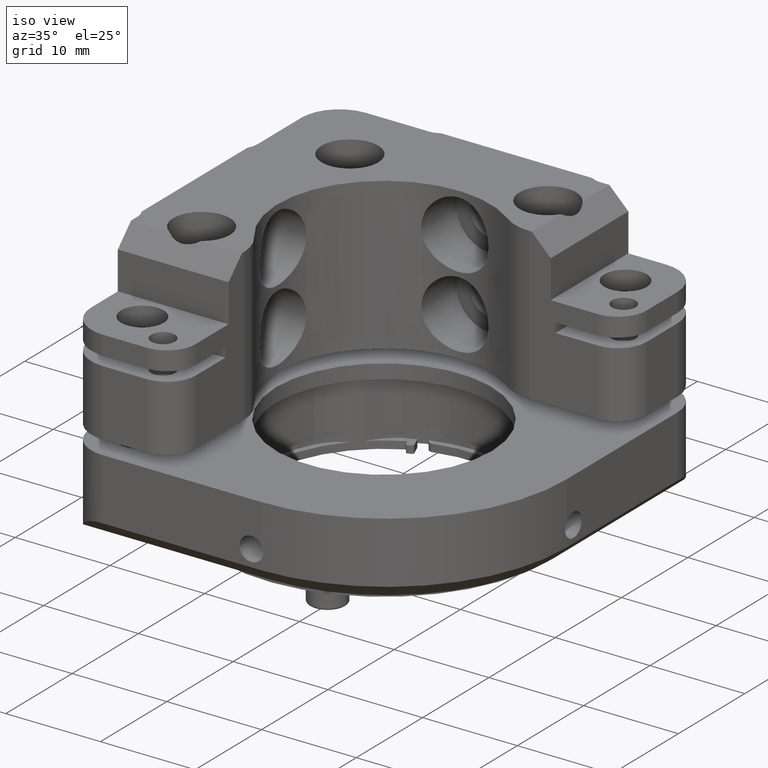
[diagram: clean part render]
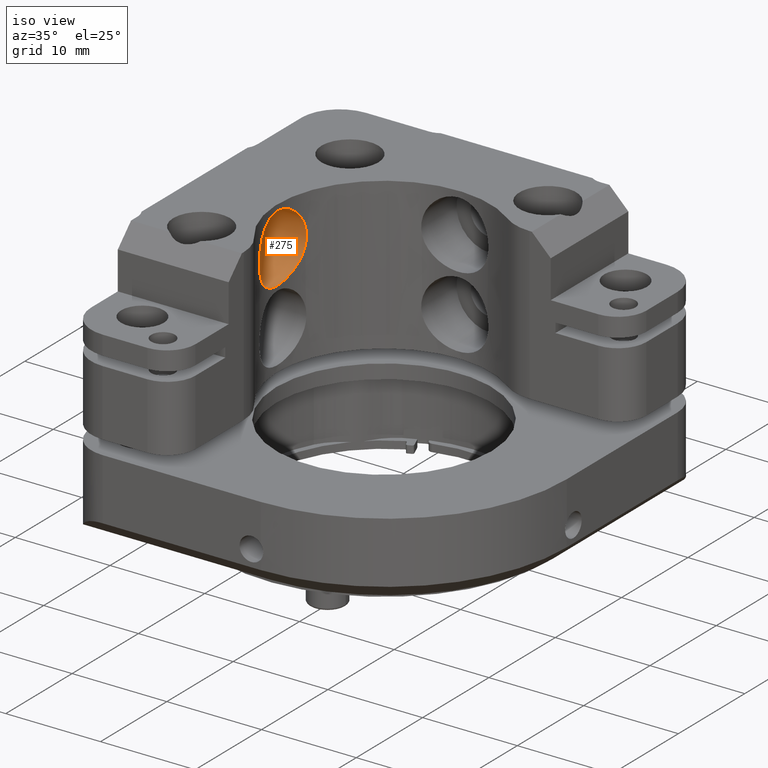
[diagram: same view with one face highlighted and labeled with its STEP entity id]
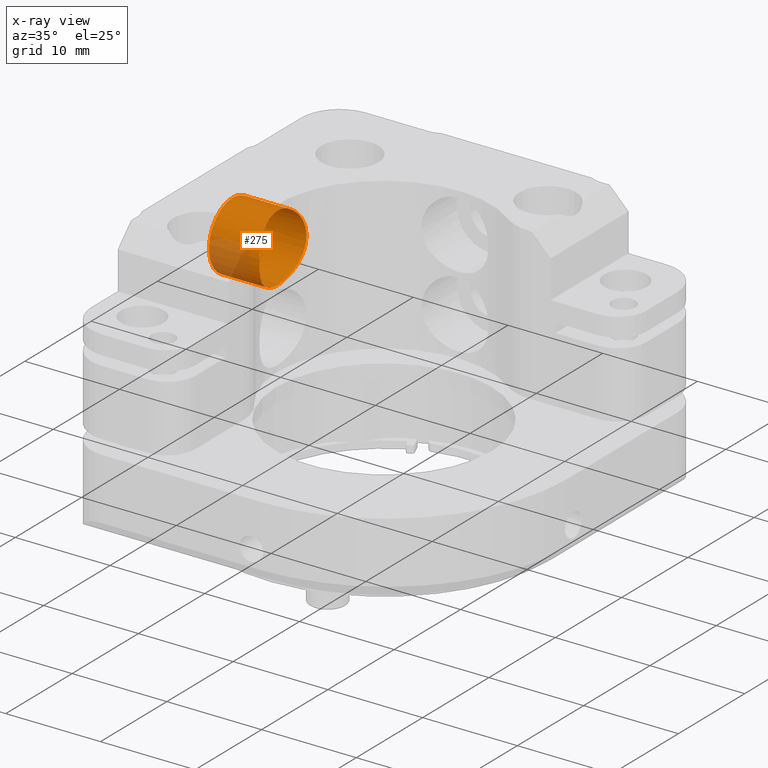
[diagram: x-ray of the same camera — body ghosted, the highlighted face saturated]
A machine part, iso view. The second image highlights one B-rep face of the part: STEP entity #275.
The next image is the same camera in x-ray: the body ghosted, the highlighted face saturated — about 21% of this face is hidden behind the body in this view.
In plain terms, the highlighted cylindrical surface (bore or boss wall) has radius 3.55 mm, axis along (-1, 0, 0).
Its self-contained STEP definition (entity closure, byte-faithful):
#230 = CARTESIAN_POINT ( 'NONE',  ( -14.34938155197306031, -0.3493427435872565323, 51.36994135241587145 ) ) ;
#243 = DIRECTION ( 'NONE',  ( -1.000000000000000000, 0.000000000000000000, 0.000000000000000000 ) ) ;
#266 = CARTESIAN_POINT ( 'NONE',  ( -14.50196695122227020, -3.668004962413770720, 51.91675362483372425 ) ) ;
#275 = ADVANCED_FACE ( 'NONE', ( #2614, #3347 ), #5842, .F. ) ;
#302 = CARTESIAN_POINT ( 'NONE',  ( -14.55884723110194479, -2.752726602096708941, 52.10018332450349732 ) ) ;
#388 = CARTESIAN_POINT ( 'NONE',  ( -14.02132692640836353, -5.953641031909469916, 47.62547198155860428 ) ) ;
#884 = CARTESIAN_POINT ( 'NONE',  ( -14.41806050655969607, -0.7339734682347992534, 51.62776871347067242 ) ) ;
#923 = CARTESIAN_POINT ( 'NONE',  ( -14.23784310037552991, -5.191031516735002072, 50.89782489308907998 ) ) ;
#964 = CARTESIAN_POINT ( 'NONE',  ( -14.23790010131066097, 0.1542511310234342958, 46.20198453954466089 ) ) ;
#1010 = CARTESIAN_POINT ( 'NONE',  ( -13.98373852480606772, 1.031736574939190687, 48.31748265889726923 ) ) ;
#1047 = CARTESIAN_POINT ( 'NONE',  ( -14.52286853720845095, -3.445834450622162315, 45.11533075807382431 ) ) ;
#1211 = CARTESIAN_POINT ( 'NONE',  ( -14.52297633522691811, -1.592701298058768478, 51.98514347307779815 ) ) ;
#1362 = AXIS2_PLACEMENT_3D ( 'NONE', #6175, #3638, #1884 ) ;
#1485 = CARTESIAN_POINT ( 'NONE',  ( -14.52291027287348690, -1.591501658945259967, 45.11519661780572932 ) ) ;
#1538 = CARTESIAN_POINT ( 'NONE',  ( -14.09792468312627989, 0.6694563421489656552, 46.97040808818641722 ) ) ;
#1579 = CARTESIAN_POINT ( 'NONE',  ( -14.04353503508571421, -5.884579590757777368, 49.70084631418019683 ) ) ;
#1621 = CARTESIAN_POINT ( 'NONE',  ( -14.19966687702944341, -5.340682160188625183, 46.38450991387337297 ) ) ;
#1661 = CARTESIAN_POINT ( 'NONE',  ( -14.13000341172667973, -5.596967618585718895, 50.33293905043067440 ) ) ;
#1783 = CARTESIAN_POINT ( 'NONE',  ( -14.44920765232755500, -0.9372602349848169201, 51.73704620837801826 ) ) ;
#1884 = DIRECTION ( 'NONE',  ( 0.000000000000000000, 0.000000000000000000, 1.000000000000000000 ) ) ;
#2097 = CARTESIAN_POINT ( 'NONE',  ( -13.99150271656788114, -6.045252171686082754, 49.01662609851116770 ) ) ;
#2139 = CARTESIAN_POINT ( 'NONE',  ( -14.55881623098980704, -2.285960062059621656, 45.00004295029686574 ) ) ;
#2183 = CARTESIAN_POINT ( 'NONE',  ( -14.31245966457891861, -4.865223725128505983, 45.87645910048630782 ) ) ;
#2221 = CARTESIAN_POINT ( 'NONE',  ( -14.55145378063382289, -2.984852828135218239, 52.07696004103888754 ) ) ;
#2263 = CARTESIAN_POINT ( 'NONE',  ( -14.34995764190793999, -4.684324765757032161, 51.37218108142621276 ) ) ;
#2430 = CARTESIAN_POINT ( 'NONE',  ( -14.55880942955014490, -2.516505101774574538, 52.10006357876157068 ) ) ;
#2614 = FACE_OUTER_BOUND ( 'NONE', #2866, .T. ) ;
#2712 = CARTESIAN_POINT ( 'NONE',  ( -14.31283028025158544, -0.1731325834270254493, 45.87495661421760929 ) ) ;
#2726 = DIRECTION ( 'NONE',  ( 0.000000000000000000, 0.000000000000000000, 1.000000000000000000 ) ) ;
#2750 = CARTESIAN_POINT ( 'NONE',  ( -14.31236665372329497, -4.865579660462101330, 51.22321759613161163 ) ) ;
#2791 = CARTESIAN_POINT ( 'NONE',  ( -13.98377623798470992, -6.068232449621256741, 48.78514352119040609 ) ) ;
#2831 = EDGE_LOOP ( 'NONE', ( #6524 ) ) ;
#2835 = CARTESIAN_POINT ( 'NONE',  ( -14.55142638204622152, -2.050476473053577386, 45.02325034902395373 ) ) ;
#2866 = EDGE_LOOP ( 'NONE', ( #6298 ) ) ;
#2870 = CARTESIAN_POINT ( 'NONE',  ( -14.20004375408154473, 0.3027011831886659565, 50.71773260952213747 ) ) ;
#2999 = B_SPLINE_CURVE_WITH_KNOTS ( 'NONE', 3,
 ( #7710, #302, #2221, #7864, #266, #7087, #6643, #2263, #2750, #923, #5248, #1661, #4644, #1579, #4064, #2097, #2791, #5294, #7826, #388, #7137, #3411, #5218, #1621, #5904, #2183, #4686, #7177, #6521, #4723, #1047, #6562, #7216, #2139, #2835, #1485, #7260, #4102, #6604, #5829, #2712, #964, #6483, #3373, #1538, #3450, #5950, #7743, #1010, #3985, #3495, #7790, #5334, #4023, #5986, #2870, #5371, #4146, #230, #884, #1783, #5417, #1211, #6063, #4314, #2430 ),
 .UNSPECIFIED., .T., .F.,
 ( 4, 2, 2, 2, 2, 2, 2, 2, 2, 2, 2, 2, 2, 2, 2, 2, 2, 2, 2, 2, 2, 2, 2, 2, 2, 2, 2, 2, 2, 2, 2, 2, 4 ),
 ( 0.000000000000000000, 0.0006989021168187838648, 0.001397804233637567730, 0.002096706350456351703, 0.002795608467275135459, 0.003494510584093919216, 0.004193412700912703406, 0.004892314817731486729, 0.005591216934550270919, 0.006290119051369055109, 0.006989021168187838431, 0.007687923285006622622, 0.008386825401825406812, 0.009085727518644190134, 0.009784629635462973457, 0.01048353175228175851, 0.01118243386910054184, 0.01188133598591932516, 0.01258023810273811022, 0.01327914021955689354, 0.01397804233637567686, 0.01467694445319446192, 0.01537584657001324524, 0.01607474868683202857, 0.01677365080365081362, 0.01747255292046959521, 0.01817145503728838027, 0.01887035715410716533, 0.01956925927092594691, 0.02026816138774473197, 0.02096706350456351703, 0.02166596562138229862, 0.02236486773820108367 ),
 .UNSPECIFIED. ) ;
#3115 = AXIS2_PLACEMENT_3D ( 'NONE', #5764, #243, #2726 ) ;
#3347 = FACE_OUTER_BOUND ( 'NONE', #2831, .T. ) ;
#3373 = CARTESIAN_POINT ( 'NONE',  ( -14.13034108904982844, 0.5591043744184972519, 46.76536937481006362 ) ) ;
#3406 = VERTEX_POINT ( 'NONE', #4720 ) ;
#3411 = CARTESIAN_POINT ( 'NONE',  ( -14.09777252055769914, -5.706580936417137373, 46.97140806861663265 ) ) ;
#3450 = CARTESIAN_POINT ( 'NONE',  ( -14.04320260101548712, 0.8490531433978674158, 47.40200718258390822 ) ) ;
#3495 = CARTESIAN_POINT ( 'NONE',  ( -13.99143269117510968, 1.008855428358812478, 49.01525435947483800 ) ) ;
#3638 = DIRECTION ( 'NONE',  ( 1.000000000000000000, -0.000000000000000000, -0.000000000000000000 ) ) ;
#3835 = EDGE_CURVE ( 'NONE', #4637, #4637, #5145, .T. ) ;
#3985 = CARTESIAN_POINT ( 'NONE',  ( -13.98376600850350648, 1.031653968431955670, 48.78390287392970492 ) ) ;
#4023 = CARTESIAN_POINT ( 'NONE',  ( -14.09743687607721263, 0.6710712621954466606, 50.12604712210562496 ) ) ;
#4064 = CARTESIAN_POINT ( 'NONE',  ( -14.02129716282795968, -5.953736409218917558, 49.47464372509379871 ) ) ;
#4102 = CARTESIAN_POINT ( 'NONE',  ( -14.44990052618223508, -0.9422479295007150091, 45.36067783892659833 ) ) ;
#4146 = CARTESIAN_POINT ( 'NONE',  ( -14.31182664526665782, -0.1685190205109306505, 51.22099704538728560 ) ) ;
#4314 = CARTESIAN_POINT ( 'NONE',  ( -14.55877162799834501, -2.280283601452439690, 52.09994383301963694 ) ) ;
#4487 = EDGE_CURVE ( 'NONE', #3406, #3406, #2999, .T. ) ;
#4637 = VERTEX_POINT ( 'NONE', #4915 ) ;
#4644 = CARTESIAN_POINT ( 'NONE',  ( -14.09776218133027825, -5.706590609421564153, 50.12833507118006793 ) ) ;
#4686 = CARTESIAN_POINT ( 'NONE',  ( -14.34933855203380304, -4.687443089632545856, 45.73036547846156452 ) ) ;
#4720 = CARTESIAN_POINT ( 'NONE',  ( -14.55880942950740753, -2.516505101756307372, 52.10006357871882443 ) ) ;
#4723 = CARTESIAN_POINT ( 'NONE',  ( -14.50197724960687573, -3.667851306598838956, 45.18334387269553787 ) ) ;
#4915 = CARTESIAN_POINT ( 'NONE',  ( -19.31367805534608095, -2.518304672637899255, 52.10006403488205962 ) ) ;
#5145 = CIRCLE ( 'NONE', #1362, 3.549999999999997602 ) ;
#5218 = CARTESIAN_POINT ( 'NONE',  ( -14.13008342977265919, -5.596606485972150047, 46.76694954633290280 ) ) ;
#5248 = CARTESIAN_POINT ( 'NONE',  ( -14.20052046670563328, -5.337475134072348304, 50.72010706791046175 ) ) ;
#5294 = CARTESIAN_POINT ( 'NONE',  ( -13.98372829189709776, -6.068376559009611704, 48.31717095152794172 ) ) ;
#5334 = CARTESIAN_POINT ( 'NONE',  ( -14.04340211094560331, 0.8483843342302226365, 49.69951898221236775 ) ) ;
#5371 = CARTESIAN_POINT ( 'NONE',  ( -14.23735183233070245, 0.1564133067401859145, 50.89554042323900518 ) ) ;
#5417 = CARTESIAN_POINT ( 'NONE',  ( -14.50174835704737042, -1.366434978306969139, 51.91603389441686289 ) ) ;
#5764 = CARTESIAN_POINT ( 'NONE',  ( -8.313678055346136020, -2.518304672637899255, 48.55006403488206246 ) ) ;
#5829 = CARTESIAN_POINT ( 'NONE',  ( -14.34965902118301706, -0.3508033890057177806, 45.72911979677649441 ) ) ;
#5842 = CYLINDRICAL_SURFACE ( 'NONE', #3115, 3.549999999999997602 ) ;
#5904 = CARTESIAN_POINT ( 'NONE',  ( -14.23741423689451580, -5.192853928844922251, 46.20422118842130033 ) ) ;
#5950 = CARTESIAN_POINT ( 'NONE',  ( -14.02143916507536048, 0.9166845689758924554, 47.62402538644072081 ) ) ;
#5986 = CARTESIAN_POINT ( 'NONE',  ( -14.12954058581125949, 0.5619793918330148186, 50.33015144011146447 ) ) ;
#6063 = CARTESIAN_POINT ( 'NONE',  ( -14.55130870495940698, -2.048446328498501501, 52.07649927321978112 ) ) ;
#6175 = CARTESIAN_POINT ( 'NONE',  ( -19.31367805534608095, -2.518304672637899255, 48.55006403488206246 ) ) ;
#6298 = ORIENTED_EDGE ( 'NONE', *, *, #3835, .F. ) ;
#6483 = CARTESIAN_POINT ( 'NONE',  ( -14.20005008547469139, 0.3026082326140059342, 46.38256966266853709 ) ) ;
#6521 = CARTESIAN_POINT ( 'NONE',  ( -14.44967137678196778, -4.096008389578191355, 45.36147295171117833 ) ) ;
#6524 = ORIENTED_EDGE ( 'NONE', *, *, #4487, .T. ) ;
#6562 = CARTESIAN_POINT ( 'NONE',  ( -14.55148877973396004, -2.985073271443384080, 45.02304954001099446 ) ) ;
#6604 = CARTESIAN_POINT ( 'NONE',  ( -14.41811655458778141, -0.7343811136711323462, 45.47217434471910025 ) ) ;
#6643 = CARTESIAN_POINT ( 'NONE',  ( -14.41850418985779569, -4.299862059901133016, 51.62935631462408281 ) ) ;
#7087 = CARTESIAN_POINT ( 'NONE',  ( -14.44957533605585986, -4.096725046579946294, 51.73832354039979720 ) ) ;
#7137 = CARTESIAN_POINT ( 'NONE',  ( -14.04302876569152581, -5.886216827376354210, 47.40357901013533848 ) ) ;
#7177 = CARTESIAN_POINT ( 'NONE',  ( -14.41787489450094029, -4.303739261957409745, 45.47303872650005019 ) ) ;
#7216 = CARTESIAN_POINT ( 'NONE',  ( -14.55880290685930056, -2.751293141128624331, 45.00008514866111398 ) ) ;
#7260 = CARTESIAN_POINT ( 'NONE',  ( -14.50210005301817695, -1.369993334557434217, 45.18294059856804523 ) ) ;
#7710 = CARTESIAN_POINT ( 'NONE',  ( -14.55880942955014490, -2.516505101774574538, 52.10006357876157068 ) ) ;
#7743 = CARTESIAN_POINT ( 'NONE',  ( -13.99164787549766942, 1.008203459175478267, 48.08055464768769127 ) ) ;
#7790 = CARTESIAN_POINT ( 'NONE',  ( -14.02125087418548155, 0.9172719542902356693, 49.47422509046867845 ) ) ;
#7826 = CARTESIAN_POINT ( 'NONE',  ( -13.99165030983516544, -6.044802761240436695, 48.08079055652988387 ) ) ;
#7864 = CARTESIAN_POINT ( 'NONE',  ( -14.52319783318795565, -3.441308859880179316, 51.98586465336619966 ) ) ;